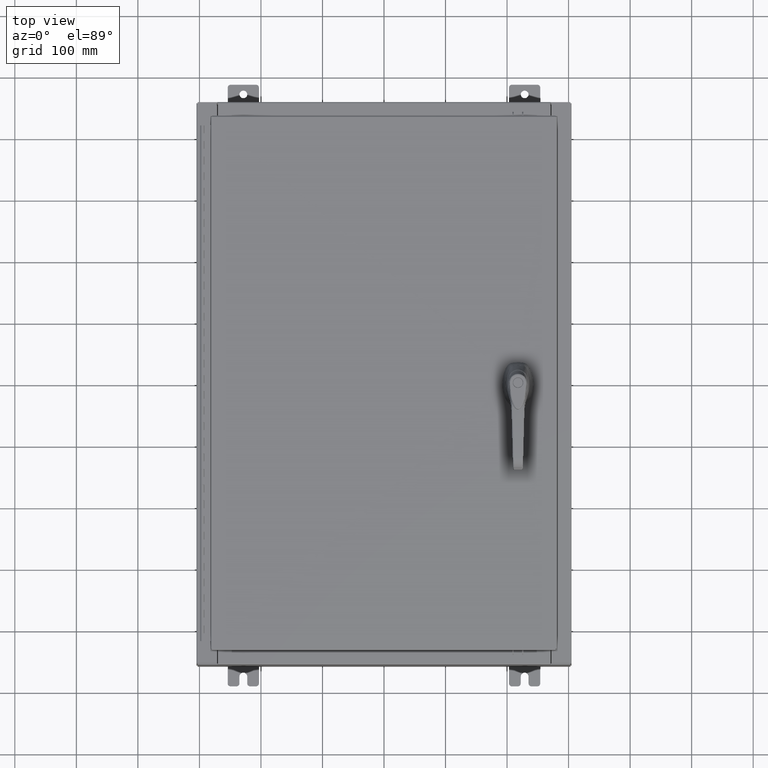
[diagram: clean part render]
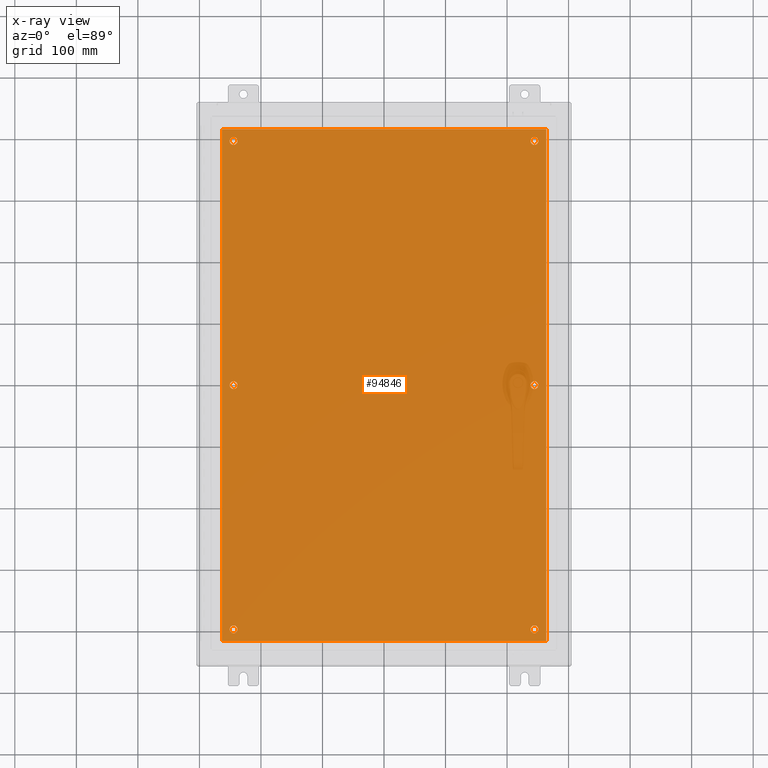
[diagram: x-ray — body ghosted, one internal face saturated and labeled with its STEP entity id]
A machine part, top view, then the same camera in x-ray: the body is ghosted and one INTERNAL B-rep face — a face not visible from any outside direction — is saturated and labeled: STEP entity #94846.
In plain terms, the highlighted planar face has unit normal (0, 0, -1).
Its self-contained STEP definition (entity closure, byte-faithful):
#478 = VERTEX_POINT ( 'NONE', #44931 ) ;
#835 = AXIS2_PLACEMENT_3D ( 'NONE', #36855, #102685, #46366 ) ;
#2771 = CIRCLE ( 'NONE', #40271, 0.2500000000000008900 ) ;
#3220 = DIRECTION ( 'NONE',  ( -1.000000000000000000, 0.0000000000000000000, 0.0000000000000000000 ) ) ;
#3922 = ORIENTED_EDGE ( 'NONE', *, *, #119297, .T. ) ;
#5382 = VERTEX_POINT ( 'NONE', #95939 ) ;
#6225 = DIRECTION ( 'NONE',  ( -0.0000000000000000000, -0.0000000000000000000, 1.000000000000000000 ) ) ;
#7077 = EDGE_CURVE ( 'NONE', #23117, #9014, #92685, .T. ) ;
#8306 = EDGE_CURVE ( 'NONE', #111844, #58503, #10009, .T. ) ;
#9014 = VERTEX_POINT ( 'NONE', #68550 ) ;
#9192 = EDGE_CURVE ( 'NONE', #86325, #23117, #85008, .T. ) ;
#9498 = EDGE_LOOP ( 'NONE', ( #38321, #87349 ) ) ;
#9893 = VECTOR ( 'NONE', #89457, 39.37007874015748100 ) ;
#10009 = CIRCLE ( 'NONE', #84415, 0.2499999999999998100 ) ;
#10931 = ORIENTED_EDGE ( 'NONE', *, *, #87892, .T. ) ;
#11589 = CARTESIAN_POINT ( 'NONE',  ( 10.50000000000000400, 16.38299999999999900, -0.1040000000000009100 ) ) ;
#12345 = DIRECTION ( 'NONE',  ( -0.0000000000000000000, -0.0000000000000000000, 1.000000000000000000 ) ) ;
#13634 = VECTOR ( 'NONE', #86931, 39.37007874015748100 ) ;
#13871 = VERTEX_POINT ( 'NONE', #108093 ) ;
#15223 = VERTEX_POINT ( 'NONE', #112408 ) ;
#15539 = CARTESIAN_POINT ( 'NONE',  ( 9.625000000000007100, -15.62500000000000200, -0.1039999999999999800 ) ) ;
#16108 = CARTESIAN_POINT ( 'NONE',  ( -9.875000000000007100, -15.62500000000000200, -0.1039999999999999800 ) ) ;
#17633 = ORIENTED_EDGE ( 'NONE', *, *, #70882, .T. ) ;
#17871 = LINE ( 'NONE', #40030, #115138 ) ;
#18515 = EDGE_LOOP ( 'NONE', ( #45685, #116622 ) ) ;
#19913 = EDGE_CURVE ( 'NONE', #39664, #39169, #77658, .T. ) ;
#20065 = DIRECTION ( 'NONE',  ( -0.0000000000000000000, -0.0000000000000000000, 1.000000000000000000 ) ) ;
#21548 = FACE_BOUND ( 'NONE', #63659, .T. ) ;
#23117 = VERTEX_POINT ( 'NONE', #85613 ) ;
#24948 = DIRECTION ( 'NONE',  ( -1.000000000000000000, 0.0000000000000000000, 0.0000000000000000000 ) ) ;
#24983 = EDGE_CURVE ( 'NONE', #58503, #111844, #78643, .T. ) ;
#25096 = AXIS2_PLACEMENT_3D ( 'NONE', #68764, #12345, #78146 ) ;
#27197 = AXIS2_PLACEMENT_3D ( 'NONE', #47357, #27881, #113141 ) ;
#27881 = DIRECTION ( 'NONE',  ( 0.0000000000000000000, 0.0000000000000000000, -1.000000000000000000 ) ) ;
#28337 = DIRECTION ( 'NONE',  ( -0.0000000000000000000, -0.0000000000000000000, 1.000000000000000000 ) ) ;
#28656 = CARTESIAN_POINT ( 'NONE',  ( -9.625000000000007100, -15.62500000000000200, -0.1039999999999999800 ) ) ;
#29176 = CARTESIAN_POINT ( 'NONE',  ( -9.625000000000007100, -15.62500000000000200, -0.1039999999999999800 ) ) ;
#33505 = AXIS2_PLACEMENT_3D ( 'NONE', #97557, #41168, #106977 ) ;
#36269 = AXIS2_PLACEMENT_3D ( 'NONE', #62634, #6225, #72049 ) ;
#36289 = CARTESIAN_POINT ( 'NONE',  ( -9.375000000000007100, -15.62500000000000200, -0.1039999999999999800 ) ) ;
#36855 = CARTESIAN_POINT ( 'NONE',  ( 9.625000000000007100, 15.62500000000000200, -0.1039999999999999800 ) ) ;
#38232 = DIRECTION ( 'NONE',  ( -1.000000000000000000, 0.0000000000000000000, 0.0000000000000000000 ) ) ;
#38321 = ORIENTED_EDGE ( 'NONE', *, *, #52971, .T. ) ;
#38752 = DIRECTION ( 'NONE',  ( -1.000000000000000000, 0.0000000000000000000, 0.0000000000000000000 ) ) ;
#39169 = VERTEX_POINT ( 'NONE', #91119 ) ;
#39664 = VERTEX_POINT ( 'NONE', #95980 ) ;
#40030 = CARTESIAN_POINT ( 'NONE',  ( 10.38300000000000100, -16.38299999999999600, -0.1040000000000009100 ) ) ;
#40271 = AXIS2_PLACEMENT_3D ( 'NONE', #28656, #94583, #38232 ) ;
#40715 = CIRCLE ( 'NONE', #835, 0.2499999999999998100 ) ;
#40827 = CIRCLE ( 'NONE', #58374, 0.2500000000000008900 ) ;
#41168 = DIRECTION ( 'NONE',  ( -0.0000000000000000000, -0.0000000000000000000, 1.000000000000000000 ) ) ;
#44865 = EDGE_CURVE ( 'NONE', #39169, #39664, #99967, .T. ) ;
#44931 = CARTESIAN_POINT ( 'NONE',  ( 10.38300000000000100, 16.38300000000000300, -0.1040000000000009100 ) ) ;
#45685 = ORIENTED_EDGE ( 'NONE', *, *, #24983, .T. ) ;
#46245 = ORIENTED_EDGE ( 'NONE', *, *, #64076, .F. ) ;
#46366 = DIRECTION ( 'NONE',  ( -1.000000000000000000, 0.0000000000000000000, 0.0000000000000000000 ) ) ;
#46679 = FACE_BOUND ( 'NONE', #58076, .T. ) ;
#47357 = CARTESIAN_POINT ( 'NONE',  ( 0.0000000000000000000, 0.0000000000000000000, -0.1039999999999999800 ) ) ;
#49672 = FACE_BOUND ( 'NONE', #73911, .T. ) ;
#50009 = CARTESIAN_POINT ( 'NONE',  ( -10.50000000000000200, -16.38299999999999600, -0.1040000000000009100 ) ) ;
#50972 = CARTESIAN_POINT ( 'NONE',  ( -9.625000000000007100, 15.62500000000000200, -0.1039999999999999800 ) ) ;
#51633 = CARTESIAN_POINT ( 'NONE',  ( -10.38300000000000100, 16.38300000000000300, -0.1039999999999987600 ) ) ;
#52971 = EDGE_CURVE ( 'NONE', #79748, #69638, #56280, .T. ) ;
#53720 = CARTESIAN_POINT ( 'NONE',  ( -9.625000000000005300, 2.628543122537473900E-016, -0.1039999999999999800 ) ) ;
#54163 = AXIS2_PLACEMENT_3D ( 'NONE', #76534, #20065, #86037 ) ;
#56280 = CIRCLE ( 'NONE', #33505, 0.2499999999999998100 ) ;
#58076 = EDGE_LOOP ( 'NONE', ( #17633, #90988 ) ) ;
#58374 = AXIS2_PLACEMENT_3D ( 'NONE', #53720, #119479, #63183 ) ;
#58503 = VERTEX_POINT ( 'NONE', #80062 ) ;
#59284 = VERTEX_POINT ( 'NONE', #36289 ) ;
#59429 = CARTESIAN_POINT ( 'NONE',  ( 9.875000000000007100, 15.62500000000000200, -0.1039999999999999800 ) ) ;
#59478 = DIRECTION ( 'NONE',  ( 1.000000000000000000, -0.0000000000000000000, -0.0000000000000000000 ) ) ;
#59630 = DIRECTION ( 'NONE',  ( -0.0000000000000000000, -0.0000000000000000000, 1.000000000000000000 ) ) ;
#60273 = EDGE_CURVE ( 'NONE', #13871, #5382, #67060, .T. ) ;
#60441 = DIRECTION ( 'NONE',  ( -1.000000000000000000, 0.0000000000000000000, 0.0000000000000000000 ) ) ;
#61799 = VECTOR ( 'NONE', #59478, 39.37007874015748100 ) ;
#62634 = CARTESIAN_POINT ( 'NONE',  ( 9.625000000000007100, 2.620299400612403500E-015, -0.1039999999999999800 ) ) ;
#63183 = DIRECTION ( 'NONE',  ( -1.000000000000000000, 0.0000000000000000000, 0.0000000000000000000 ) ) ;
#63659 = EDGE_LOOP ( 'NONE', ( #117098, #106747 ) ) ;
#64076 = EDGE_CURVE ( 'NONE', #478, #86325, #113758, .T. ) ;
#64416 = CARTESIAN_POINT ( 'NONE',  ( 9.375000000000007100, -15.62500000000000200, -0.1039999999999999800 ) ) ;
#64924 = EDGE_LOOP ( 'NONE', ( #97067, #98738, #46245, #100039 ) ) ;
#65658 = VERTEX_POINT ( 'NONE', #88732 ) ;
#67060 = CIRCLE ( 'NONE', #103291, 0.2499999999999998100 ) ;
#68550 = CARTESIAN_POINT ( 'NONE',  ( 10.38300000000000100, -16.38299999999999600, -0.1040000000000009100 ) ) ;
#68764 = CARTESIAN_POINT ( 'NONE',  ( -9.625000000000005300, 2.628543122537473900E-016, -0.1039999999999999800 ) ) ;
#69638 = VERTEX_POINT ( 'NONE', #103737 ) ;
#70882 = EDGE_CURVE ( 'NONE', #65658, #15223, #40827, .T. ) ;
#71719 = FACE_BOUND ( 'NONE', #18515, .T. ) ;
#71734 = EDGE_CURVE ( 'NONE', #69638, #79748, #40715, .T. ) ;
#71786 = AXIS2_PLACEMENT_3D ( 'NONE', #84813, #28337, #94256 ) ;
#72049 = DIRECTION ( 'NONE',  ( -1.000000000000000000, 0.0000000000000000000, 0.0000000000000000000 ) ) ;
#73911 = EDGE_LOOP ( 'NONE', ( #110640, #105250 ) ) ;
#75083 = VERTEX_POINT ( 'NONE', #16108 ) ;
#75318 = PLANE ( 'NONE',  #27197 ) ;
#76534 = CARTESIAN_POINT ( 'NONE',  ( 9.625000000000007100, -15.62500000000000200, -0.1039999999999999800 ) ) ;
#77658 = CIRCLE ( 'NONE', #89871, 0.2500000000000008900 ) ;
#78146 = DIRECTION ( 'NONE',  ( -1.000000000000000000, 0.0000000000000000000, 0.0000000000000000000 ) ) ;
#78643 = CIRCLE ( 'NONE', #54163, 0.2499999999999998100 ) ;
#79748 = VERTEX_POINT ( 'NONE', #59429 ) ;
#80062 = CARTESIAN_POINT ( 'NONE',  ( 9.875000000000007100, -15.62500000000000200, -0.1039999999999999800 ) ) ;
#81432 = DIRECTION ( 'NONE',  ( -0.0000000000000000000, -0.0000000000000000000, 1.000000000000000000 ) ) ;
#83172 = CARTESIAN_POINT ( 'NONE',  ( -10.38300000000000100, 16.38300000000000300, -0.1039999999999987600 ) ) ;
#84415 = AXIS2_PLACEMENT_3D ( 'NONE', #15539, #81432, #24948 ) ;
#84813 = CARTESIAN_POINT ( 'NONE',  ( -9.625000000000007100, 15.62500000000000200, -0.1039999999999999800 ) ) ;
#85008 = LINE ( 'NONE', #51633, #9893 ) ;
#85613 = CARTESIAN_POINT ( 'NONE',  ( -10.38300000000000100, -16.38299999999999600, -0.1040000000000009100 ) ) ;
#86037 = DIRECTION ( 'NONE',  ( -1.000000000000000000, 0.0000000000000000000, 0.0000000000000000000 ) ) ;
#86325 = VERTEX_POINT ( 'NONE', #83172 ) ;
#86353 = EDGE_LOOP ( 'NONE', ( #3922, #10931 ) ) ;
#86931 = DIRECTION ( 'NONE',  ( -1.000000000000000000, -0.0000000000000000000, -0.0000000000000000000 ) ) ;
#87349 = ORIENTED_EDGE ( 'NONE', *, *, #71734, .T. ) ;
#87614 = EDGE_CURVE ( 'NONE', #5382, #13871, #98512, .T. ) ;
#87892 = EDGE_CURVE ( 'NONE', #75083, #59284, #2771, .T. ) ;
#88732 = CARTESIAN_POINT ( 'NONE',  ( -9.375000000000005300, 2.628543122537473900E-016, -0.1039999999999999800 ) ) ;
#88939 = CIRCLE ( 'NONE', #25096, 0.2500000000000008900 ) ;
#89457 = DIRECTION ( 'NONE',  ( 0.0000000000000000000, -1.000000000000000000, 0.0000000000000000000 ) ) ;
#89871 = AXIS2_PLACEMENT_3D ( 'NONE', #50972, #116749, #60441 ) ;
#90988 = ORIENTED_EDGE ( 'NONE', *, *, #120375, .T. ) ;
#91119 = CARTESIAN_POINT ( 'NONE',  ( -9.875000000000007100, 15.62500000000000200, -0.1039999999999999800 ) ) ;
#92685 = LINE ( 'NONE', #50009, #61799 ) ;
#94256 = DIRECTION ( 'NONE',  ( -1.000000000000000000, 0.0000000000000000000, 0.0000000000000000000 ) ) ;
#94583 = DIRECTION ( 'NONE',  ( -0.0000000000000000000, -0.0000000000000000000, 1.000000000000000000 ) ) ;
#94846 = ADVANCED_FACE ( 'NONE', ( #49672, #46679, #121740, #71719, #96732, #21548, #118794 ), #75318, .T. ) ;
#95096 = DIRECTION ( 'NONE',  ( -0.0000000000000000000, -0.0000000000000000000, 1.000000000000000000 ) ) ;
#95939 = CARTESIAN_POINT ( 'NONE',  ( 9.375000000000007100, 2.650915570591087300E-015, -0.1039999999999999800 ) ) ;
#95980 = CARTESIAN_POINT ( 'NONE',  ( -9.375000000000007100, 15.62500000000000200, -0.1039999999999999800 ) ) ;
#96394 = DIRECTION ( 'NONE',  ( 0.0000000000000000000, 1.000000000000000000, 0.0000000000000000000 ) ) ;
#96732 = FACE_BOUND ( 'NONE', #9498, .T. ) ;
#97067 = ORIENTED_EDGE ( 'NONE', *, *, #7077, .F. ) ;
#97557 = CARTESIAN_POINT ( 'NONE',  ( 9.625000000000007100, 15.62500000000000200, -0.1039999999999999800 ) ) ;
#98512 = CIRCLE ( 'NONE', #36269, 0.2499999999999998100 ) ;
#98738 = ORIENTED_EDGE ( 'NONE', *, *, #9192, .F. ) ;
#99967 = CIRCLE ( 'NONE', #71786, 0.2500000000000008900 ) ;
#100039 = ORIENTED_EDGE ( 'NONE', *, *, #106173, .F. ) ;
#101623 = AXIS2_PLACEMENT_3D ( 'NONE', #29176, #95096, #38752 ) ;
#102685 = DIRECTION ( 'NONE',  ( -0.0000000000000000000, -0.0000000000000000000, 1.000000000000000000 ) ) ;
#103291 = AXIS2_PLACEMENT_3D ( 'NONE', #115917, #59630, #3220 ) ;
#103737 = CARTESIAN_POINT ( 'NONE',  ( 9.375000000000007100, 15.62500000000000200, -0.1039999999999999800 ) ) ;
#103756 = CIRCLE ( 'NONE', #101623, 0.2500000000000008900 ) ;
#105250 = ORIENTED_EDGE ( 'NONE', *, *, #87614, .T. ) ;
#106173 = EDGE_CURVE ( 'NONE', #9014, #478, #17871, .T. ) ;
#106747 = ORIENTED_EDGE ( 'NONE', *, *, #44865, .T. ) ;
#106977 = DIRECTION ( 'NONE',  ( -1.000000000000000000, 0.0000000000000000000, 0.0000000000000000000 ) ) ;
#108093 = CARTESIAN_POINT ( 'NONE',  ( 9.875000000000007100, 2.620299400612403500E-015, -0.1039999999999999800 ) ) ;
#110640 = ORIENTED_EDGE ( 'NONE', *, *, #60273, .T. ) ;
#111844 = VERTEX_POINT ( 'NONE', #64416 ) ;
#112408 = CARTESIAN_POINT ( 'NONE',  ( -9.875000000000005300, 2.934704822324310800E-016, -0.1039999999999999800 ) ) ;
#113141 = DIRECTION ( 'NONE',  ( -1.000000000000000000, 0.0000000000000000000, -0.0000000000000000000 ) ) ;
#113758 = LINE ( 'NONE', #11589, #13634 ) ;
#115138 = VECTOR ( 'NONE', #96394, 39.37007874015748100 ) ;
#115917 = CARTESIAN_POINT ( 'NONE',  ( 9.625000000000007100, 2.620299400612403500E-015, -0.1039999999999999800 ) ) ;
#116622 = ORIENTED_EDGE ( 'NONE', *, *, #8306, .T. ) ;
#116749 = DIRECTION ( 'NONE',  ( -0.0000000000000000000, -0.0000000000000000000, 1.000000000000000000 ) ) ;
#117098 = ORIENTED_EDGE ( 'NONE', *, *, #19913, .T. ) ;
#118794 = FACE_OUTER_BOUND ( 'NONE', #64924, .T. ) ;
#119297 = EDGE_CURVE ( 'NONE', #59284, #75083, #103756, .T. ) ;
#119479 = DIRECTION ( 'NONE',  ( -0.0000000000000000000, -0.0000000000000000000, 1.000000000000000000 ) ) ;
#120375 = EDGE_CURVE ( 'NONE', #15223, #65658, #88939, .T. ) ;
#121740 = FACE_BOUND ( 'NONE', #86353, .T. ) ;